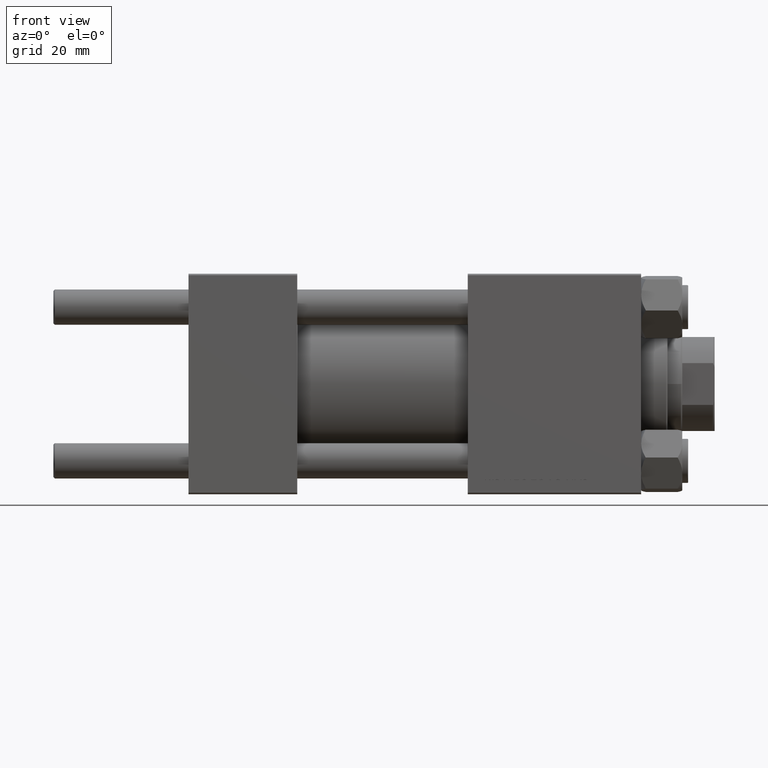
[diagram: clean part render]
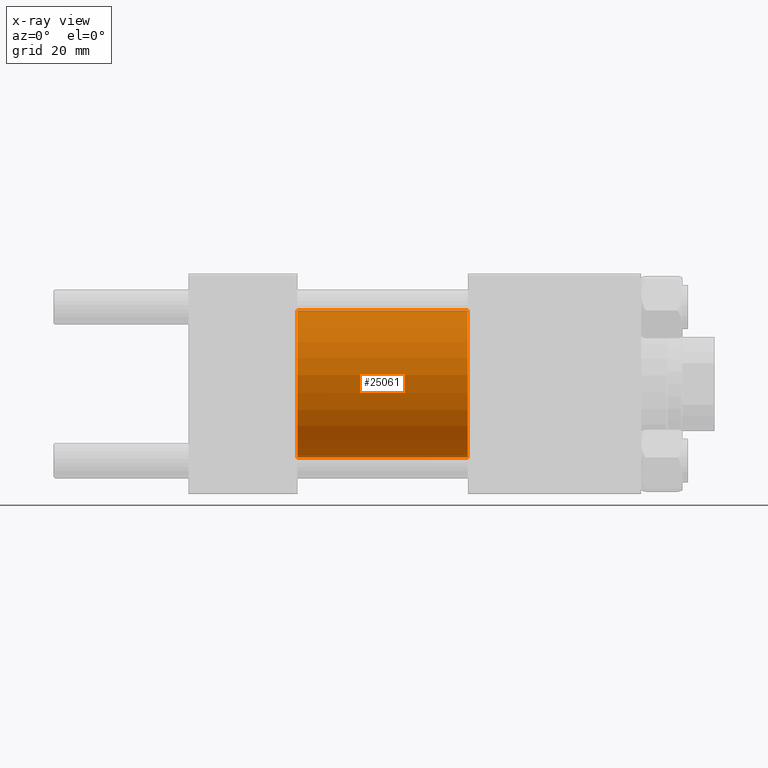
[diagram: x-ray — body ghosted, one internal face saturated and labeled with its STEP entity id]
A machine part, front view, then the same camera in x-ray: the body is ghosted and one INTERNAL B-rep face — a face not visible from any outside direction — is saturated and labeled: STEP entity #25061.
In plain terms, the highlighted cylindrical surface (partial cylindrical patch) has radius 25 mm, axis along (-1, -0, -0).
Its self-contained STEP definition (entity closure, byte-faithful):
#396 = CIRCLE ( 'NONE', #23843, 25.00000000000000000 ) ;
#597 = CARTESIAN_POINT ( 'NONE',  ( 37.00000000000000000, 3.061616997868382254E-15, -25.00000000000000000 ) ) ;
#1289 = LINE ( 'NONE', #25796, #25772 ) ;
#2139 = ORIENTED_EDGE ( 'NONE', *, *, #3963, .F. ) ;
#3022 = DIRECTION ( 'NONE',  ( -1.000000000000000000, -0.000000000000000000, -0.000000000000000000 ) ) ;
#3472 = EDGE_CURVE ( 'NONE', #38278, #43243, #37733, .T. ) ;
#3963 = EDGE_CURVE ( 'NONE', #38278, #21492, #35110, .T. ) ;
#7380 = CARTESIAN_POINT ( 'NONE',  ( 95.00000000000000000, 3.061616997868382254E-15, -25.00000000000000000 ) ) ;
#8670 = EDGE_CURVE ( 'NONE', #43243, #29140, #1289, .T. ) ;
#14737 = AXIS2_PLACEMENT_3D ( 'NONE', #20074, #23878, #29084 ) ;
#15173 = DIRECTION ( 'NONE',  ( -1.000000000000000000, -0.000000000000000000, -0.000000000000000000 ) ) ;
#17232 = CARTESIAN_POINT ( 'NONE',  ( 95.00000000000000000, 0.000000000000000000, 25.00000000000000000 ) ) ;
#17787 = DIRECTION ( 'NONE',  ( 1.000000000000000000, 0.000000000000000000, 0.000000000000000000 ) ) ;
#19454 = ORIENTED_EDGE ( 'NONE', *, *, #8670, .T. ) ;
#20074 = CARTESIAN_POINT ( 'NONE',  ( 95.00000000000000000, 0.000000000000000000, 0.000000000000000000 ) ) ;
#20831 = EDGE_LOOP ( 'NONE', ( #29540, #19454, #22562, #2139 ) ) ;
#21492 = VERTEX_POINT ( 'NONE', #26587 ) ;
#22562 = ORIENTED_EDGE ( 'NONE', *, *, #35895, .F. ) ;
#23288 = CARTESIAN_POINT ( 'NONE',  ( 37.00000000000000000, 0.000000000000000000, 0.000000000000000000 ) ) ;
#23843 = AXIS2_PLACEMENT_3D ( 'NONE', #23288, #31602, #35628 ) ;
#23878 = DIRECTION ( 'NONE',  ( -1.000000000000000000, -0.000000000000000000, -0.000000000000000000 ) ) ;
#25061 = ADVANCED_FACE ( 'NONE', ( #32869 ), #27897, .F. ) ;
#25632 = CARTESIAN_POINT ( 'NONE',  ( 95.00000000000000000, 0.000000000000000000, 0.000000000000000000 ) ) ;
#25772 = VECTOR ( 'NONE', #3022, 1000.000000000000000 ) ;
#25796 = CARTESIAN_POINT ( 'NONE',  ( 95.00000000000000000, 3.061616997868382254E-15, -25.00000000000000000 ) ) ;
#26587 = CARTESIAN_POINT ( 'NONE',  ( 37.00000000000000000, 0.000000000000000000, 25.00000000000000000 ) ) ;
#27897 = CYLINDRICAL_SURFACE ( 'NONE', #14737, 25.00000000000000000 ) ;
#29084 = DIRECTION ( 'NONE',  ( 0.000000000000000000, 0.000000000000000000, 1.000000000000000000 ) ) ;
#29140 = VERTEX_POINT ( 'NONE', #597 ) ;
#29540 = ORIENTED_EDGE ( 'NONE', *, *, #3472, .T. ) ;
#31602 = DIRECTION ( 'NONE',  ( 1.000000000000000000, 0.000000000000000000, 0.000000000000000000 ) ) ;
#32869 = FACE_OUTER_BOUND ( 'NONE', #20831, .T. ) ;
#32947 = DIRECTION ( 'NONE',  ( 0.000000000000000000, 0.000000000000000000, -1.000000000000000000 ) ) ;
#35110 = LINE ( 'NONE', #41939, #48179 ) ;
#35272 = AXIS2_PLACEMENT_3D ( 'NONE', #25632, #17787, #32947 ) ;
#35628 = DIRECTION ( 'NONE',  ( 0.000000000000000000, 0.000000000000000000, -1.000000000000000000 ) ) ;
#35895 = EDGE_CURVE ( 'NONE', #21492, #29140, #396, .T. ) ;
#37733 = CIRCLE ( 'NONE', #35272, 25.00000000000000000 ) ;
#38278 = VERTEX_POINT ( 'NONE', #17232 ) ;
#41939 = CARTESIAN_POINT ( 'NONE',  ( 95.00000000000000000, 0.000000000000000000, 25.00000000000000000 ) ) ;
#43243 = VERTEX_POINT ( 'NONE', #7380 ) ;
#48179 = VECTOR ( 'NONE', #15173, 1000.000000000000000 ) ;